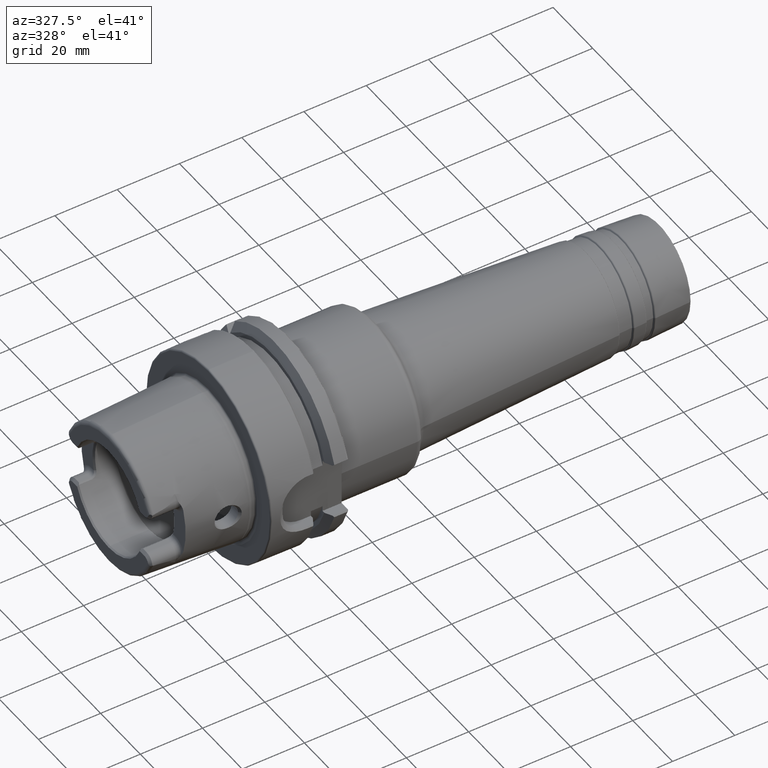
[diagram: clean part render]
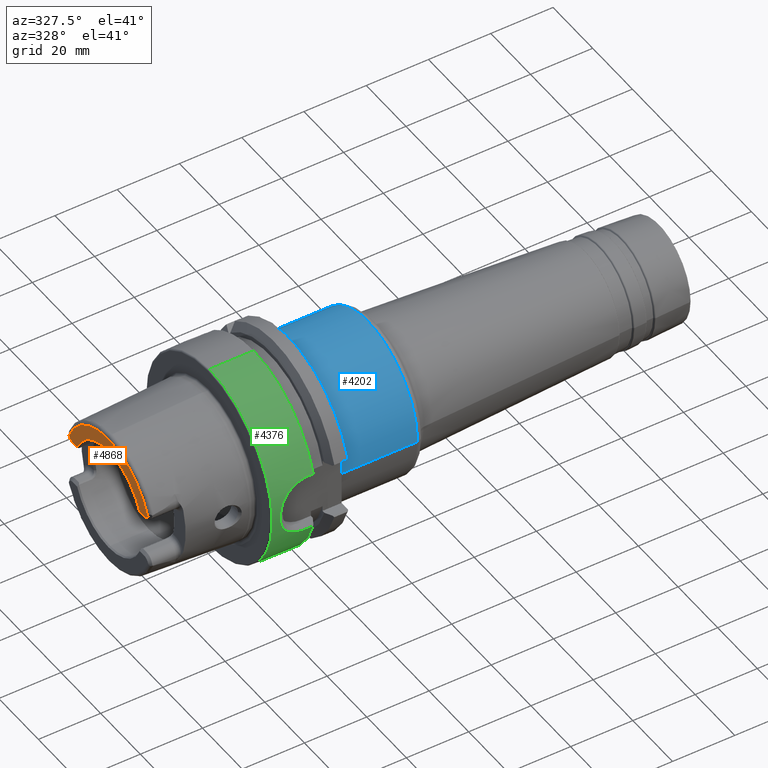
[diagram: same view with three faces highlighted in distinct colors, each labeled with its STEP entity id]
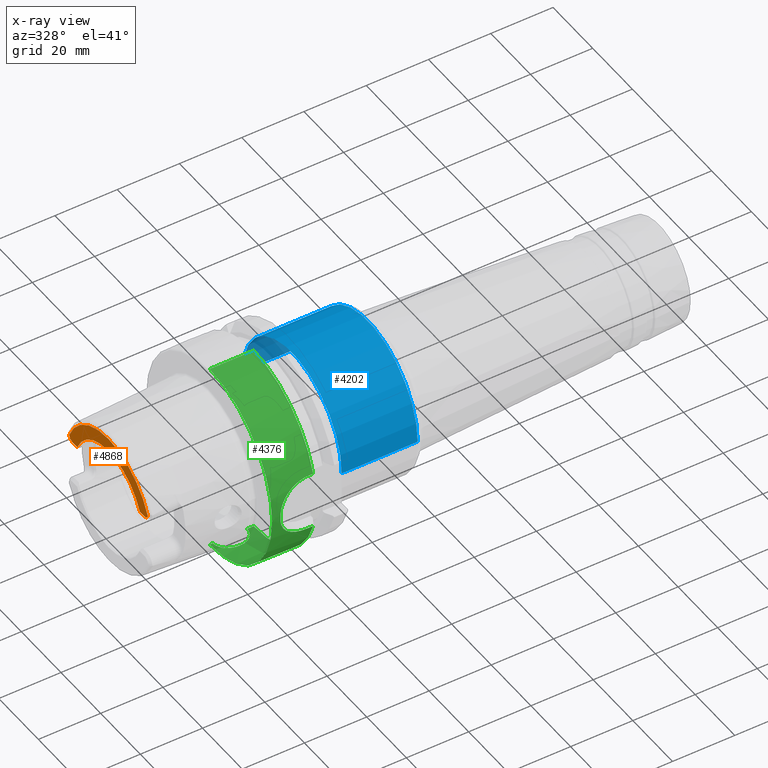
[diagram: x-ray of the same camera — body ghosted, the three highlighted faces saturated]
A machine part, auxiliary view with three faces highlighted in distinct colors.
The next image is the same camera in x-ray (body ghosted, the three faces saturated) — at least one of them is partly hidden behind the body in this view.
Their STEP definitions:

[orange] entity #4868 — the highlighted planar face has unit normal (1, 0, 0).
#1269=CARTESIAN_POINT('',(-1.259842519685E0,-6.211413067031E-1,
2.783464566929E-1));
#1275=CARTESIAN_POINT('',(-1.259842519685E0,0.E0,0.E0));
#1276=DIRECTION('',(1.E0,0.E0,0.E0));
#1277=DIRECTION('',(0.E0,9.125620712653E-1,4.089382179351E-1));
#1278=AXIS2_PLACEMENT_3D('',#1275,#1276,#1277);
#1280=DIRECTION('',(-2.293680467463E-13,1.E0,2.338279809886E-13));
#1281=VECTOR('',#1280,8.712640983232E-2);
#1282=CARTESIAN_POINT('',(-1.259842519685E0,6.211413067031E-1,
2.783464566929E-1));
#1283=LINE('',#1282,#1281);
#1284=CARTESIAN_POINT('',(-1.259842519685E0,7.082677165354E-1,
3.602362204724E-1));
#1285=DIRECTION('',(1.E0,0.E0,0.E0));
#1286=DIRECTION('',(0.E0,-2.304780298236E-14,-1.E0));
#1287=AXIS2_PLACEMENT_3D('',#1284,#1285,#1286);
#1289=CARTESIAN_POINT('',(-1.259842519685E0,-7.082677165354E-1,
3.602362204724E-1));
#1290=DIRECTION('',(-1.E0,0.E0,0.E0));
#1291=DIRECTION('',(0.E0,2.304780298236E-14,-1.E0));
#1292=AXIS2_PLACEMENT_3D('',#1289,#1290,#1291);
#1294=DIRECTION('',(-1.783973696915E-13,-1.E0,1.790345031547E-13));
#1295=VECTOR('',#1294,8.712640983231E-2);
#1296=CARTESIAN_POINT('',(-1.259842519685E0,-6.211413067031E-1,
2.783464566929E-1));
#1297=LINE('',#1296,#1295);
#1320=CARTESIAN_POINT('',(-1.259842519685E0,6.211413067031E-1,
2.783464566929E-1));
#1502=CARTESIAN_POINT('',(-1.259842519685E0,0.E0,0.E0));
#1503=DIRECTION('',(-1.E0,0.E0,0.E0));
#1504=DIRECTION('',(0.E0,-9.224287428258E-1,3.861673399044E-1));
#1505=AXIS2_PLACEMENT_3D('',#1502,#1503,#1504);
#3046=CARTESIAN_POINT('',(-1.259842519685E0,-7.082677165354E-1,
2.783464566929E-1));
#3047=CARTESIAN_POINT('',(-1.259842519685E0,-7.835586513393E-1,
3.280304981823E-1));
#3048=VERTEX_POINT('',#3046);
#3049=VERTEX_POINT('',#3047);
#3067=CARTESIAN_POINT('',(-1.259842519685E0,7.082677165354E-1,
2.783464566929E-1));
#3069=VERTEX_POINT('',#3067);
#3074=CARTESIAN_POINT('',(-1.259842519685E0,7.835586513393E-1,
3.280304981823E-1));
#3075=VERTEX_POINT('',#3074);
#3186=VERTEX_POINT('',#1269);
#3191=VERTEX_POINT('',#1320);
#4851=CARTESIAN_POINT('',(-1.259842519685E0,0.E0,0.E0));
#4852=DIRECTION('',(1.E0,0.E0,0.E0));
#4853=DIRECTION('',(0.E0,0.E0,1.E0));
#4854=AXIS2_PLACEMENT_3D('',#4851,#4852,#4853);
#4855=PLANE('',#4854);
#4856=ORIENTED_EDGE('',*,*,#4841,.F.);
#4858=ORIENTED_EDGE('',*,*,#4857,.T.);
#4860=ORIENTED_EDGE('',*,*,#4859,.T.);
#4862=ORIENTED_EDGE('',*,*,#4861,.F.);
#4864=ORIENTED_EDGE('',*,*,#4863,.F.);
#4865=ORIENTED_EDGE('',*,*,#4826,.F.);
#4866=EDGE_LOOP('',(#4856,#4858,#4860,#4862,#4864,#4865));
#4867=FACE_OUTER_BOUND('',#4866,.F.);
#4868=ADVANCED_FACE('',(#4867),#4855,.F.);
#1279=CIRCLE('',#1278,6.806565013620E-1);
#1288=CIRCLE('',#1287,8.188976377953E-2);
#1293=CIRCLE('',#1292,8.188976377953E-2);
#1506=CIRCLE('',#1505,8.494516865757E-1);
#4826=EDGE_CURVE('',#3186,#3048,#1297,.T.);
#4841=EDGE_CURVE('',#3191,#3186,#1279,.T.);
#4857=EDGE_CURVE('',#3191,#3069,#1283,.T.);
#4859=EDGE_CURVE('',#3069,#3075,#1288,.T.);
#4861=EDGE_CURVE('',#3049,#3075,#1506,.T.);
#4863=EDGE_CURVE('',#3048,#3049,#1293,.T.);

[blue] entity #4202 — the highlighted cylindrical surface (partial cylindrical patch) has radius 25 mm, axis along (1, 0, 0).
#678=DIRECTION('',(-1.E0,0.E0,2.817148274682E-12));
#679=VECTOR('',#678,9.604426500372E-1);
#680=CARTESIAN_POINT('',(2.023064697281E0,9.842519685039E-1,
-1.483579765694E-12));
#681=LINE('',#680,#679);
#687=DIRECTION('',(-1.E0,0.E0,-2.817146660381E-12));
#688=VECTOR('',#687,9.604426500372E-1);
#689=CARTESIAN_POINT('',(2.023064697281E0,-9.842519685039E-1,
1.483548514906E-12));
#690=LINE('',#689,#688);
#691=CARTESIAN_POINT('',(2.023064697281E0,0.E0,0.E0));
#692=DIRECTION('',(-1.E0,0.E0,0.E0));
#693=DIRECTION('',(0.E0,-1.E0,0.E0));
#694=AXIS2_PLACEMENT_3D('',#691,#692,#693);
#696=CARTESIAN_POINT('',(1.062622047244E0,0.E0,0.E0));
#697=DIRECTION('',(1.E0,0.E0,0.E0));
#698=DIRECTION('',(0.E0,1.E0,0.E0));
#699=AXIS2_PLACEMENT_3D('',#696,#697,#698);
#3202=CARTESIAN_POINT('',(1.062622047244E0,-9.842519685039E-1,0.E0));
#3203=CARTESIAN_POINT('',(1.062622047244E0,9.842519685039E-1,0.E0));
#3204=VERTEX_POINT('',#3202);
#3205=VERTEX_POINT('',#3203);
#3250=CARTESIAN_POINT('',(2.023064697281E0,9.842519685039E-1,0.E0));
#3251=CARTESIAN_POINT('',(2.023064697281E0,-9.842519685039E-1,0.E0));
#3252=VERTEX_POINT('',#3250);
#3253=VERTEX_POINT('',#3251);
#4189=CARTESIAN_POINT('',(0.E0,0.E0,0.E0));
#4190=DIRECTION('',(1.E0,0.E0,0.E0));
#4191=DIRECTION('',(0.E0,-1.E0,0.E0));
#4192=AXIS2_PLACEMENT_3D('',#4189,#4190,#4191);
#4193=CYLINDRICAL_SURFACE('',#4192,9.842519685039E-1);
#4195=ORIENTED_EDGE('',*,*,#4194,.F.);
#4196=ORIENTED_EDGE('',*,*,#4184,.T.);
#4198=ORIENTED_EDGE('',*,*,#4197,.F.);
#4199=ORIENTED_EDGE('',*,*,#4180,.F.);
#4200=EDGE_LOOP('',(#4195,#4196,#4198,#4199));
#4201=FACE_OUTER_BOUND('',#4200,.F.);
#4202=ADVANCED_FACE('',(#4201),#4193,.T.);
#695=CIRCLE('',#694,9.842519685039E-1);
#700=CIRCLE('',#699,9.842519685039E-1);
#4180=EDGE_CURVE('',#3252,#3205,#681,.T.);
#4184=EDGE_CURVE('',#3253,#3204,#690,.T.);
#4194=EDGE_CURVE('',#3253,#3252,#695,.T.);
#4197=EDGE_CURVE('',#3205,#3204,#700,.T.);

[green] entity #4376 — the highlighted cylindrical surface (partial cylindrical patch) has radius 31.5 mm, axis along (1, 0, 0).
#800=CARTESIAN_POINT('',(1.968503937008E-2,0.E0,0.E0));
#801=DIRECTION('',(-1.E0,0.E0,0.E0));
#802=DIRECTION('',(0.E0,0.E0,-1.E0));
#803=AXIS2_PLACEMENT_3D('',#800,#801,#802);
#805=DIRECTION('',(-1.E0,-1.100247897177E-12,0.E0));
#806=VECTOR('',#805,5.560039726207E-1);
#807=CARTESIAN_POINT('',(5.756890119908E-1,0.E0,1.240157480315E0));
#808=LINE('',#807,#806);
#809=CARTESIAN_POINT('',(5.756890119908E-1,0.E0,0.E0));
#810=DIRECTION('',(1.E0,0.E0,0.E0));
#811=DIRECTION('',(0.E0,0.E0,1.E0));
#812=AXIS2_PLACEMENT_3D('',#809,#810,#811);
#814=DIRECTION('',(1.E0,0.E0,0.E0));
#815=VECTOR('',#814,6.387798836877E-2);
#816=CARTESIAN_POINT('',(5.118110236220E-1,-1.183982137824E0,
3.690215079028E-1));
#817=LINE('',#816,#815);
#818=CARTESIAN_POINT('',(1.266093313834E-1,-1.239532400900E0,
3.937007874016E-2));
#819=CARTESIAN_POINT('',(1.271523412197E-1,-1.238989391064E0,
5.646626720817E-2));
#820=CARTESIAN_POINT('',(1.311545055955E-1,-1.237229055471E0,
8.979145086367E-2));
#821=CARTESIAN_POINT('',(1.452660556986E-1,-1.232778865388E0,
1.377231134544E-1));
#822=CARTESIAN_POINT('',(1.663252413423E-1,-1.227001882055E0,
1.818198174720E-1));
#823=CARTESIAN_POINT('',(1.932766585167E-1,-1.220369812870E0,
2.217542771610E-1));
#824=CARTESIAN_POINT('',(2.249143992296E-1,-1.213400927104E0,
2.569473042150E-1));
#825=CARTESIAN_POINT('',(2.602522640166E-1,-1.206537526955E0,
2.872777746160E-1));
#826=CARTESIAN_POINT('',(2.980893010050E-1,-1.200206876013E0,
3.125358270083E-1));
#827=CARTESIAN_POINT('',(3.380494495445E-1,-1.194637017641E0,
3.330941475910E-1));
#828=CARTESIAN_POINT('',(3.797447793567E-1,-1.190043145170E0,
3.490772152703E-1));
#829=CARTESIAN_POINT('',(4.228787552399E-1,-1.186601437098E0,
3.605513349774E-1));
#830=CARTESIAN_POINT('',(4.670461887655E-1,-1.184467126173E0,
3.674707367066E-1));
#831=CARTESIAN_POINT('',(4.968151342743E-1,-1.183982137824E0,
3.690215079028E-1));
#832=CARTESIAN_POINT('',(5.118110236220E-1,-1.183982137824E0,
3.690215079028E-1));
#834=CARTESIAN_POINT('',(1.266093313834E-1,-1.239532400900E0,
3.937007874016E-2));
#835=CARTESIAN_POINT('',(1.257756820175E-1,-1.240366050266E0,
1.312335958005E-2));
#836=CARTESIAN_POINT('',(1.257756820175E-1,-1.240366050266E0,
-1.312335958005E-2));
#837=CARTESIAN_POINT('',(1.266093313834E-1,-1.239532400900E0,
-3.937007874016E-2));
#839=CARTESIAN_POINT('',(5.118110236221E-1,-1.183982137824E0,
-3.690215079028E-1));
#840=CARTESIAN_POINT('',(4.967928582969E-1,-1.183982137824E0,
-3.690215079028E-1));
#841=CARTESIAN_POINT('',(4.669516022808E-1,-1.184468086789E0,
-3.674677415896E-1));
#842=CARTESIAN_POINT('',(4.225284368129E-1,-1.186621118620E0,
-3.604873701025E-1));
#843=CARTESIAN_POINT('',(3.791834888812E-1,-1.190095126097E0,
-3.489017001192E-1));
#844=CARTESIAN_POINT('',(3.374576335198E-1,-1.194711948219E0,
-3.328261251371E-1));
#845=CARTESIAN_POINT('',(2.977218098858E-1,-1.200266066751E0,
-3.123055946161E-1));
#846=CARTESIAN_POINT('',(2.602173636683E-1,-1.206546844626E0,
-2.872303083746E-1));
#847=CARTESIAN_POINT('',(2.251789898450E-1,-1.213348187392E0,
-2.571832088760E-1));
#848=CARTESIAN_POINT('',(1.936509457741E-1,-1.220282871736E0,
-2.222246151012E-1));
#849=CARTESIAN_POINT('',(1.665850179922E-1,-1.226933431803E0,
-1.822898392057E-1));
#850=CARTESIAN_POINT('',(1.453544897445E-1,-1.232751606227E0,
-1.379975796920E-1));
#851=CARTESIAN_POINT('',(1.311481756973E-1,-1.237230085730E0,
-8.980858589035E-2));
#852=CARTESIAN_POINT('',(1.271520599033E-1,-1.238989672380E0,
-5.645741020695E-2));
#853=CARTESIAN_POINT('',(1.266093313834E-1,-1.239532400900E0,
-3.937007874016E-2));
#855=DIRECTION('',(1.E0,0.E0,0.E0));
#856=VECTOR('',#855,6.387798836876E-2);
#857=CARTESIAN_POINT('',(5.118110236221E-1,-1.183982137824E0,
-3.690215079028E-1));
#858=LINE('',#857,#856);
#859=CARTESIAN_POINT('',(5.756890119908E-1,0.E0,0.E0));
#860=DIRECTION('',(1.E0,0.E0,0.E0));
#861=DIRECTION('',(0.E0,-9.547030571660E-1,-2.975602000232E-1));
#862=AXIS2_PLACEMENT_3D('',#859,#860,#861);
#864=DIRECTION('',(-1.E0,0.E0,0.E0));
#865=VECTOR('',#864,8.356302773885E-2);
#866=CARTESIAN_POINT('',(5.756890119908E-1,0.E0,-1.240157480315E0));
#867=LINE('',#866,#865);
#868=CARTESIAN_POINT('',(5.905511811024E-2,0.E0,-1.240157480315E0));
#869=CARTESIAN_POINT('',(5.905511811024E-2,-1.413155073426E-2,
-1.240157480315E0));
#870=CARTESIAN_POINT('',(6.225044755524E-2,-4.128530174972E-2,
-1.239677966111E0));
#871=CARTESIAN_POINT('',(7.522060753438E-2,-7.899907155362E-2,
-1.237811303450E0));
#872=CARTESIAN_POINT('',(9.511332825014E-2,-1.126554630572E-1,
-1.235167305896E0));
#873=CARTESIAN_POINT('',(1.217761083984E-1,-1.425745645688E-1,
-1.232039964859E0));
#874=CARTESIAN_POINT('',(1.548281601308E-1,-1.676967648588E-1,
-1.228834527004E0));
#875=CARTESIAN_POINT('',(1.932282651112E-1,-1.865632570189E-1,
-1.226075050840E0));
#876=CARTESIAN_POINT('',(2.338787438171E-1,-1.977721057905E-1,
-1.224292479960E0));
#877=CARTESIAN_POINT('',(2.757134364200E-1,-2.015143100015E-1,
-1.223674676554E0));
#878=CARTESIAN_POINT('',(3.175241708513E-1,-1.977288771898E-1,
-1.224299532032E0));
#879=CARTESIAN_POINT('',(3.581100235467E-1,-1.865014069128E-1,
-1.226084517942E0));
#880=CARTESIAN_POINT('',(3.965105522951E-1,-1.676040933694E-1,
-1.228847513783E0));
#881=CARTESIAN_POINT('',(4.296059383455E-1,-1.423972178440E-1,
-1.232061232064E0));
#882=CARTESIAN_POINT('',(4.562676773414E-1,-1.123860153180E-1,
-1.235192474817E0));
#883=CARTESIAN_POINT('',(4.760907439669E-1,-7.870599227243E-2,
-1.237829633586E0));
#884=CARTESIAN_POINT('',(4.889643276607E-1,-4.108742031744E-2,
-1.239683054828E0));
#885=CARTESIAN_POINT('',(4.921259842520E-1,-1.405473492802E-2,
-1.240157480315E0));
#886=CARTESIAN_POINT('',(4.921259842520E-1,0.E0,-1.240157480315E0));
#888=DIRECTION('',(-1.E0,-3.347235667743E-12,0.E0));
#889=VECTOR('',#888,3.937007874016E-2);
#890=CARTESIAN_POINT('',(5.905511811024E-2,0.E0,-1.240157480315E0));
#891=LINE('',#890,#889);
#910=CARTESIAN_POINT('',(4.921259842520E-1,0.E0,-1.240157480315E0));
#928=CARTESIAN_POINT('',(5.905511811024E-2,0.E0,-1.240157480315E0));
#2963=CARTESIAN_POINT('',(5.756890119908E-1,0.E0,1.240157480315E0));
#2964=VERTEX_POINT('',#2963);
#3086=VERTEX_POINT('',#910);
#3087=VERTEX_POINT('',#928);
#3096=CARTESIAN_POINT('',(5.756890119908E-1,0.E0,-1.240157480315E0));
#3097=VERTEX_POINT('',#3096);
#3120=CARTESIAN_POINT('',(5.118110236221E-1,-1.183982137824E0,
-3.690215079028E-1));
#3121=CARTESIAN_POINT('',(5.756890119908E-1,-1.183982137824E0,
-3.690215079028E-1));
#3122=VERTEX_POINT('',#3120);
#3123=VERTEX_POINT('',#3121);
#3124=VERTEX_POINT('',#853);
#3125=VERTEX_POINT('',#834);
#3126=VERTEX_POINT('',#832);
#3127=CARTESIAN_POINT('',(5.756890119908E-1,-1.183982137824E0,
3.690215079028E-1));
#3128=VERTEX_POINT('',#3127);
#3168=CARTESIAN_POINT('',(1.968503937008E-2,0.E0,1.240157480315E0));
#3169=CARTESIAN_POINT('',(1.968503937008E-2,0.E0,-1.240157480315E0));
#3170=VERTEX_POINT('',#3168);
#3171=VERTEX_POINT('',#3169);
#4345=CARTESIAN_POINT('',(0.E0,0.E0,0.E0));
#4346=DIRECTION('',(1.E0,0.E0,0.E0));
#4347=DIRECTION('',(0.E0,0.E0,1.E0));
#4348=AXIS2_PLACEMENT_3D('',#4345,#4346,#4347);
#4349=CYLINDRICAL_SURFACE('',#4348,1.240157480315E0);
#4351=ORIENTED_EDGE('',*,*,#4350,.T.);
#4353=ORIENTED_EDGE('',*,*,#4352,.F.);
#4355=ORIENTED_EDGE('',*,*,#4354,.T.);
#4357=ORIENTED_EDGE('',*,*,#4356,.F.);
#4359=ORIENTED_EDGE('',*,*,#4358,.F.);
#4361=ORIENTED_EDGE('',*,*,#4360,.T.);
#4363=ORIENTED_EDGE('',*,*,#4362,.F.);
#4365=ORIENTED_EDGE('',*,*,#4364,.T.);
#4367=ORIENTED_EDGE('',*,*,#4366,.T.);
#4369=ORIENTED_EDGE('',*,*,#4368,.T.);
#4371=ORIENTED_EDGE('',*,*,#4370,.F.);
#4373=ORIENTED_EDGE('',*,*,#4372,.T.);
#4374=EDGE_LOOP('',(#4351,#4353,#4355,#4357,#4359,#4361,#4363,#4365,#4367,#4369,
#4371,#4373));
#4375=FACE_OUTER_BOUND('',#4374,.F.);
#4376=ADVANCED_FACE('',(#4375),#4349,.T.);
#804=CIRCLE('',#803,1.240157480315E0);
#813=CIRCLE('',#812,1.240157480315E0);
#833=B_SPLINE_CURVE_WITH_KNOTS('',3,(#818,#819,#820,#821,#822,#823,#824,#825,
#826,#827,#828,#829,#830,#831,#832),.UNSPECIFIED.,.F.,.F.,(4,1,1,1,1,1,1,1,1,1,
1,1,4),(0.E0,8.333333333333E-2,1.666666666667E-1,2.5E-1,3.333333333333E-1,
4.166666666667E-1,5.E-1,5.833333333333E-1,6.666666666667E-1,7.5E-1,
8.333333333333E-1,9.166666666667E-1,1.E0),.UNSPECIFIED.);
#838=B_SPLINE_CURVE_WITH_KNOTS('',3,(#834,#835,#836,#837),.UNSPECIFIED.,.F.,.F.,
(4,4),(0.E0,1.E0),.UNSPECIFIED.);
#854=B_SPLINE_CURVE_WITH_KNOTS('',3,(#839,#840,#841,#842,#843,#844,#845,#846,
#847,#848,#849,#850,#851,#852,#853),.UNSPECIFIED.,.F.,.F.,(4,1,1,1,1,1,1,1,1,1,
1,1,4),(0.E0,8.333333333333E-2,1.666666666667E-1,2.5E-1,3.333333333333E-1,
4.166666666667E-1,5.E-1,5.833333333333E-1,6.666666666667E-1,7.5E-1,
8.333333333333E-1,9.166666666667E-1,1.E0),.UNSPECIFIED.);
#863=CIRCLE('',#862,1.240157480315E0);
#887=B_SPLINE_CURVE_WITH_KNOTS('',3,(#868,#869,#870,#871,#872,#873,#874,#875,
#876,#877,#878,#879,#880,#881,#882,#883,#884,#885,#886),.UNSPECIFIED.,.F.,.F.,
(4,1,1,1,1,1,1,1,1,1,1,1,1,1,1,1,4),(0.E0,6.25E-2,1.25E-1,1.875E-1,2.5E-1,
3.125E-1,3.75E-1,4.375E-1,5.E-1,5.625E-1,6.25E-1,6.875E-1,7.5E-1,8.125E-1,
8.75E-1,9.375E-1,1.E0),.UNSPECIFIED.);
#4350=EDGE_CURVE('',#3171,#3170,#804,.T.);
#4352=EDGE_CURVE('',#2964,#3170,#808,.T.);
#4354=EDGE_CURVE('',#2964,#3128,#813,.T.);
#4356=EDGE_CURVE('',#3126,#3128,#817,.T.);
#4358=EDGE_CURVE('',#3125,#3126,#833,.T.);
#4360=EDGE_CURVE('',#3125,#3124,#838,.T.);
#4362=EDGE_CURVE('',#3122,#3124,#854,.T.);
#4364=EDGE_CURVE('',#3122,#3123,#858,.T.);
#4366=EDGE_CURVE('',#3123,#3097,#863,.T.);
#4368=EDGE_CURVE('',#3097,#3086,#867,.T.);
#4370=EDGE_CURVE('',#3087,#3086,#887,.T.);
#4372=EDGE_CURVE('',#3087,#3171,#891,.T.);